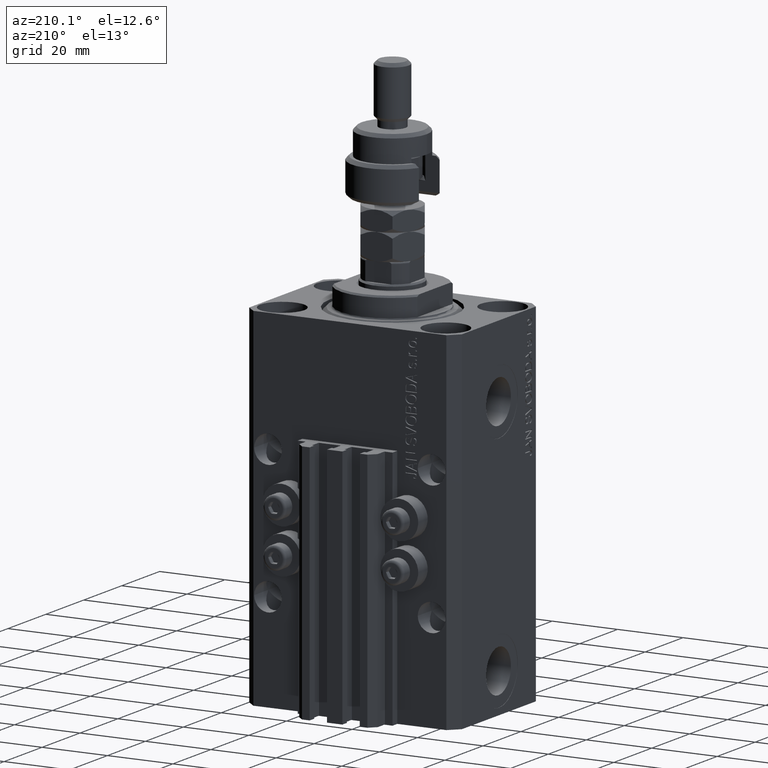
[diagram: clean part render]
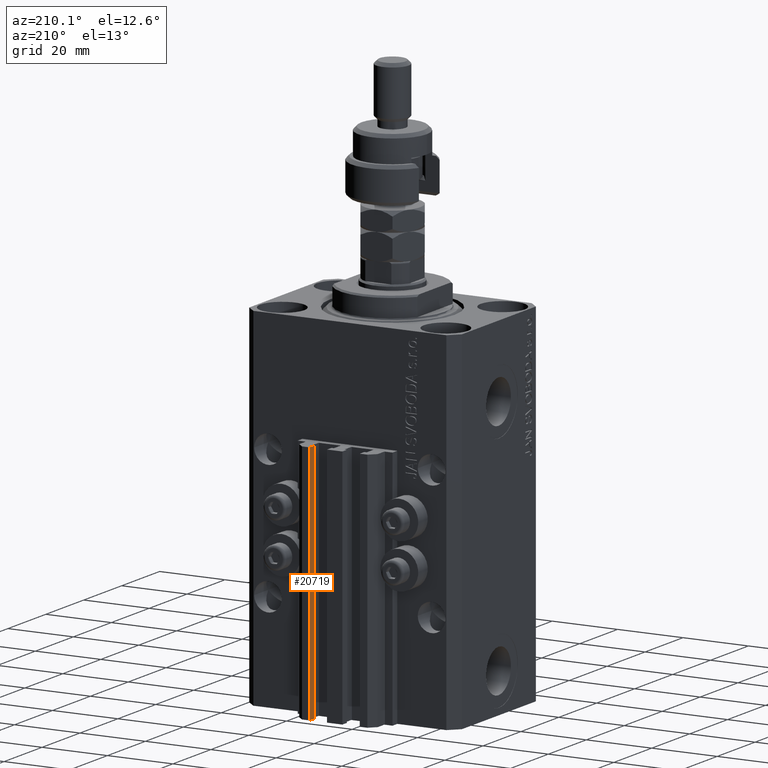
[diagram: same view with one face highlighted and labeled with its STEP entity id]
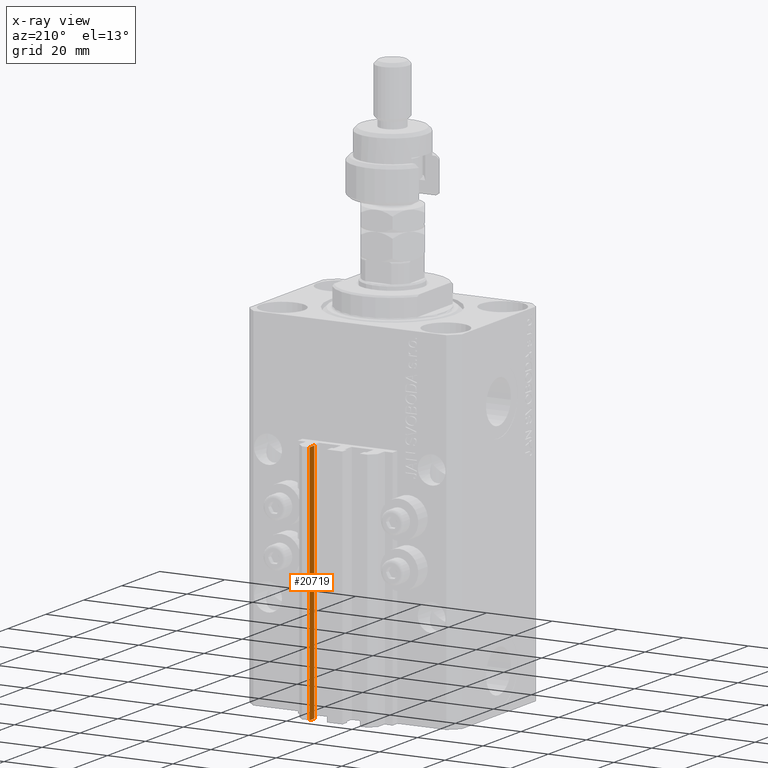
[diagram: x-ray of the same camera — body ghosted, the highlighted face saturated]
A machine part, auxiliary view. The second image highlights one B-rep face of the part: STEP entity #20719.
The next image is the same camera in x-ray: the body ghosted, the highlighted face saturated — about 0% of this face is hidden behind the body in this view.
In plain terms, the highlighted planar face has unit normal (-1, -0, 0).
Its self-contained STEP definition (entity closure, byte-faithful):
#528 = ORIENTED_EDGE ( 'NONE', *, *, #28139, .F. ) ;
#1014 = LINE ( 'NONE', #20926, #41973 ) ;
#1792 = VECTOR ( 'NONE', #35325, 1000.000000000000000 ) ;
#8096 = VERTEX_POINT ( 'NONE', #15117 ) ;
#9371 = VECTOR ( 'NONE', #16326, 1000.000000000000000 ) ;
#9927 = CARTESIAN_POINT ( 'NONE',  ( 7.649999999999995026, 30.49999999999949196, -33.00000000000000000 ) ) ;
#11337 = EDGE_CURVE ( 'NONE', #8096, #23972, #23479, .T. ) ;
#12082 = CARTESIAN_POINT ( 'NONE',  ( 7.649999999999995026, 30.49999999999949196, -33.00000000000000000 ) ) ;
#14818 = CARTESIAN_POINT ( 'NONE',  ( 7.649999999999995026, 30.49999999999949196, -107.0000000000000000 ) ) ;
#15075 = DIRECTION ( 'NONE',  ( -1.000000000000000000, -3.614007241618365534E-16, 0.000000000000000000 ) ) ;
#15117 = CARTESIAN_POINT ( 'NONE',  ( 7.649999999999995026, 30.49999999999949196, -107.0000000000000000 ) ) ;
#15741 = VERTEX_POINT ( 'NONE', #9927 ) ;
#16078 = CARTESIAN_POINT ( 'NONE',  ( 7.649999999999995026, 30.49999999999949196, -107.0000000000000000 ) ) ;
#16326 = DIRECTION ( 'NONE',  ( 0.000000000000000000, 0.000000000000000000, 1.000000000000000000 ) ) ;
#18084 = EDGE_CURVE ( 'NONE', #23972, #39673, #1014, .T. ) ;
#20719 = ADVANCED_FACE ( 'NONE', ( #33470 ), #22473, .T. ) ;
#20926 = CARTESIAN_POINT ( 'NONE',  ( 7.649999999999995914, 28.09999999999950404, -107.0000000000000000 ) ) ;
#21484 = ORIENTED_EDGE ( 'NONE', *, *, #50493, .F. ) ;
#22473 = PLANE ( 'NONE',  #26667 ) ;
#23222 = CARTESIAN_POINT ( 'NONE',  ( 7.649999999999995026, 30.49999999999949196, -107.0000000000000000 ) ) ;
#23479 = LINE ( 'NONE', #16078, #35332 ) ;
#23972 = VERTEX_POINT ( 'NONE', #41958 ) ;
#24235 = LINE ( 'NONE', #23222, #9371 ) ;
#25683 = ORIENTED_EDGE ( 'NONE', *, *, #18084, .T. ) ;
#25719 = CARTESIAN_POINT ( 'NONE',  ( 7.649999999999995914, 28.09999999999950404, -33.00000000000000000 ) ) ;
#26667 = AXIS2_PLACEMENT_3D ( 'NONE', #14818, #15075, #45974 ) ;
#28139 = EDGE_CURVE ( 'NONE', #8096, #15741, #24235, .T. ) ;
#32589 = EDGE_LOOP ( 'NONE', ( #21484, #528, #44663, #25683 ) ) ;
#33470 = FACE_OUTER_BOUND ( 'NONE', #32589, .T. ) ;
#35325 = DIRECTION ( 'NONE',  ( 3.614007241618365534E-16, -1.000000000000000000, 0.000000000000000000 ) ) ;
#35332 = VECTOR ( 'NONE', #46731, 1000.000000000000000 ) ;
#36012 = DIRECTION ( 'NONE',  ( 0.000000000000000000, 0.000000000000000000, 1.000000000000000000 ) ) ;
#39673 = VERTEX_POINT ( 'NONE', #25719 ) ;
#41958 = CARTESIAN_POINT ( 'NONE',  ( 7.649999999999995914, 28.09999999999950404, -107.0000000000000000 ) ) ;
#41973 = VECTOR ( 'NONE', #36012, 1000.000000000000000 ) ;
#42980 = LINE ( 'NONE', #12082, #1792 ) ;
#44663 = ORIENTED_EDGE ( 'NONE', *, *, #11337, .T. ) ;
#45974 = DIRECTION ( 'NONE',  ( 3.614007241618365534E-16, -1.000000000000000000, 0.000000000000000000 ) ) ;
#46731 = DIRECTION ( 'NONE',  ( 3.614007241618365534E-16, -1.000000000000000000, 0.000000000000000000 ) ) ;
#50493 = EDGE_CURVE ( 'NONE', #15741, #39673, #42980, .T. ) ;